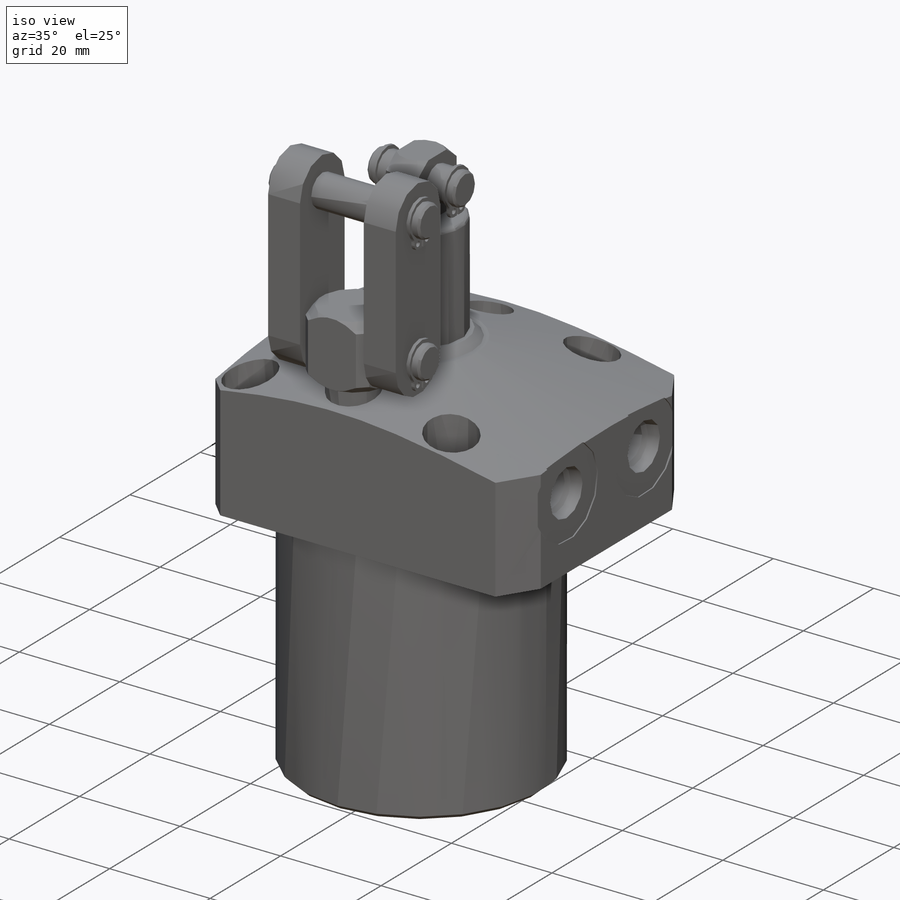
[diagram: iso view]
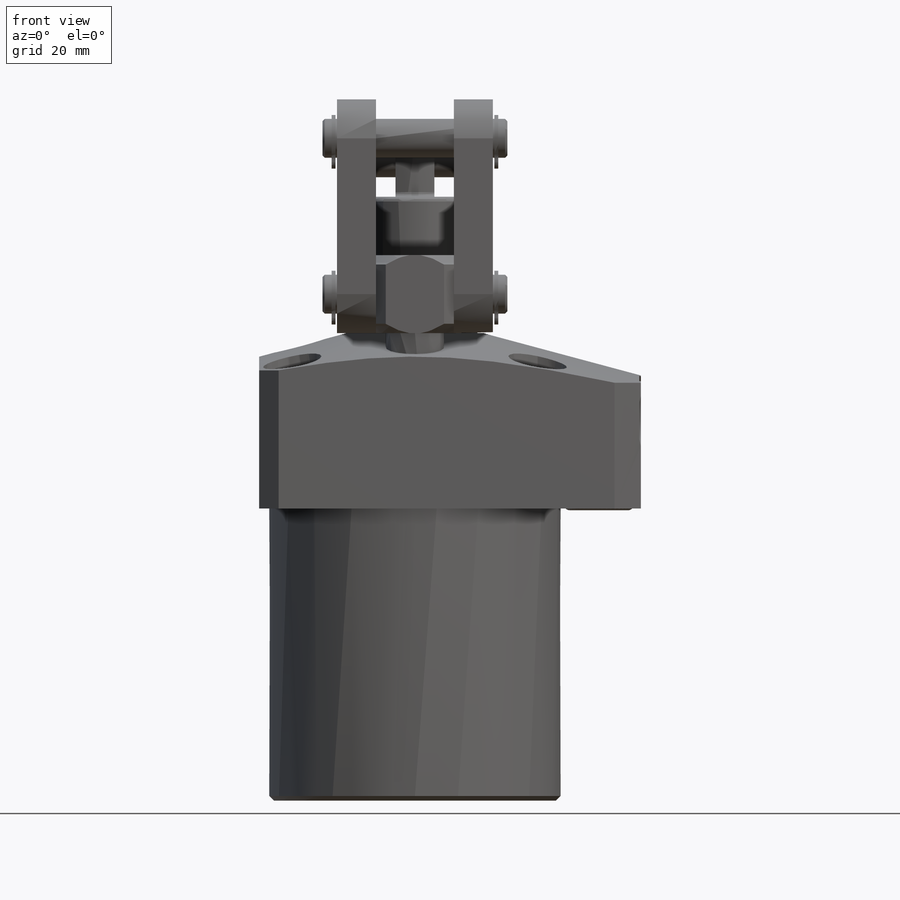
[diagram: front view]
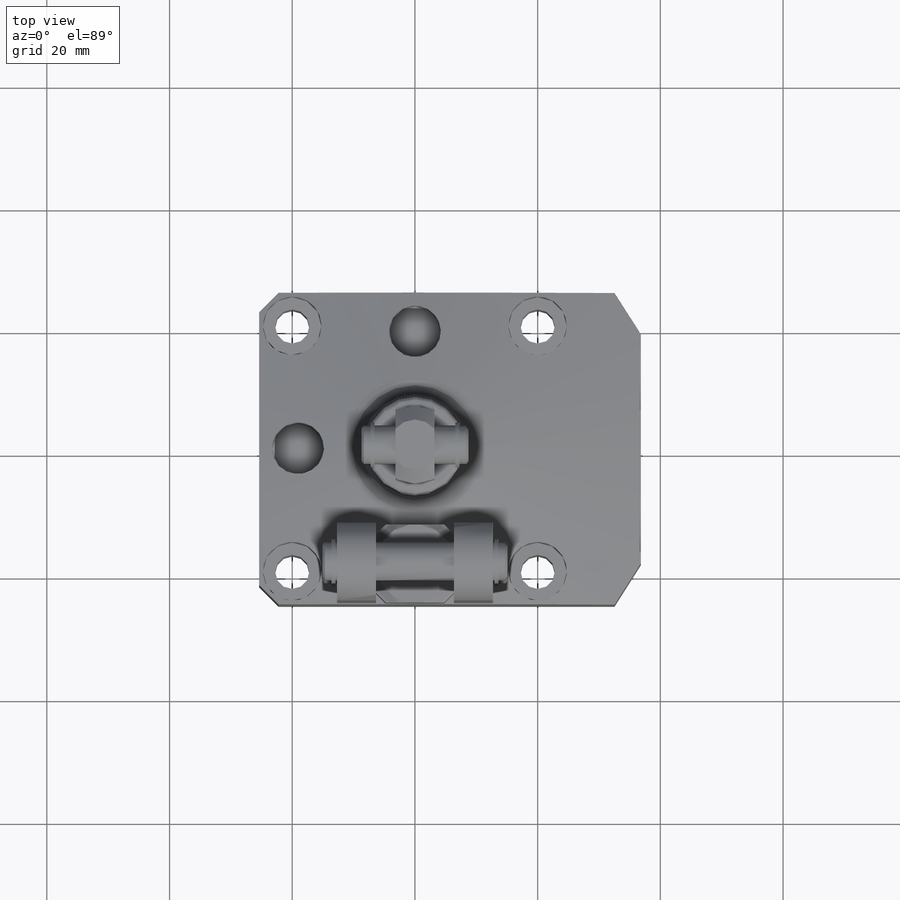
[diagram: top view]
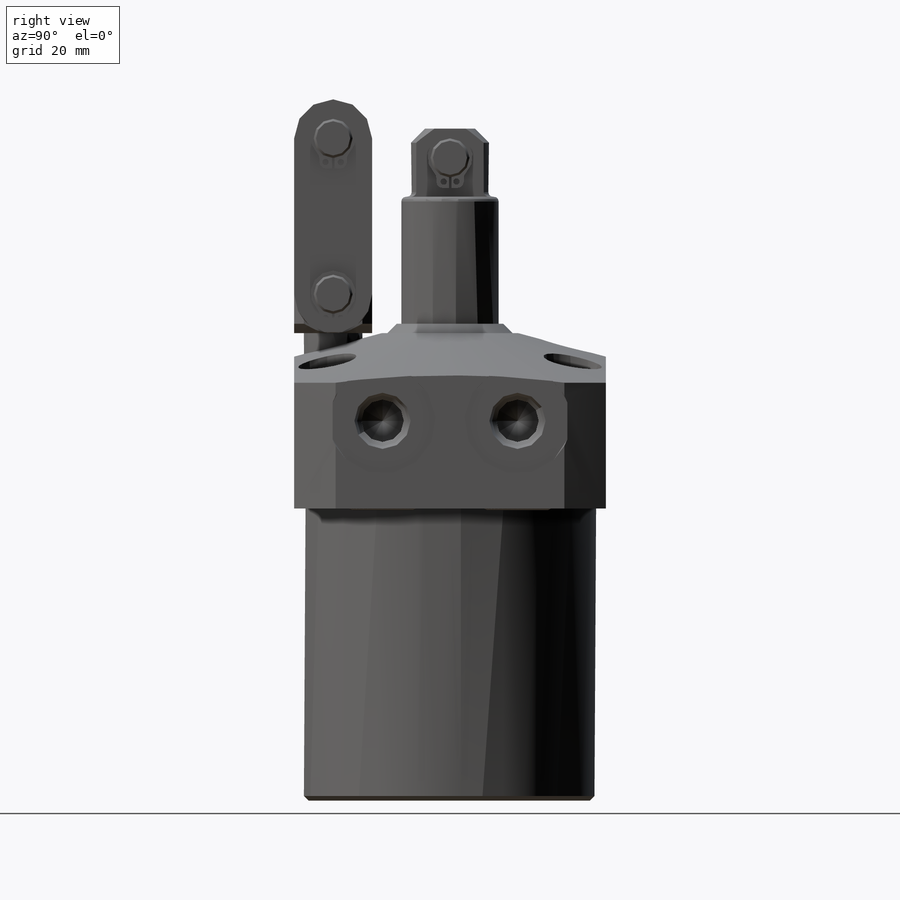
[diagram: right view]
SOLIDWORKS PART (.sldprt)
format: sldprt  version: not decoded by parser v0  size: 710,656 bytes
history: native  units: mm
features: sketch x18, mirror x6, revolve x5, extrude x5, cut_extrude x4, chamfer x4, plane x3, cut_revolve x2, material x1, hole x1, fillet x1, pattern_linear x1 (+14 scaffold rows collapsed)
feature tree (65):
  scaffold x14  (default folders/planes/origin — collapsed)
  material  "Alloy Steel"
  sketch  "Sketch28"  dims[c1.D1=76.962mm c1.D2=47.625mm c1.D3=47.625mm c1.D4=3.048mm c1.D5=82.55mm c1.D6=~23.889137mm c2.D6=15.0deg c2.D7=22.225mm c2.D8=28.575mm]
  revolve  "Revolve7"  Angle=360deg
  sketch  "Sketch3"  dims[c1.D1=50.8mm c1.D2=36.83mm c1.D3=11.7348mm c2.D3=120.0deg c2.D4=30.1498mm c2.D5=25.4mm]
  cut_extrude  "Cut-Extrude9"  [1 undecoded]
  chamfer  "Chamfer8"  Distance=3.175mm Angle=45deg
  chamfer  "Chamfer5"  Distance=0.762mm Angle=45deg
  hole  "Hole1"  Diameter=5.5626mm Depth=28.575mm
  sketch  "Sketch32"  dims[c1.D1=50.8mm c1.D2=50.8mm c1.D3=50.8mm c1.D4=25.4mm c2.D1=19.05mm c2.D2=20.0025mm c3.D1=40.005mm c3.D2=40.005mm]
  sketch  "Sketch31"  dims[Diameter=5.5626mm Depth=28.575mm C-Bore Diameter=9.525mm C-Bore Depth=11.0998mm]
  sketch  "Sketch34"  dims[D1=8.4328mm D2=19.05mm]
  cut_extrude  "Cut-Extrude10"  Depth=12.7mm
  plane  "Plane23"  Offset=14.2748mm
  sketch  "S2D0007"  dims[c1.D1=0.254mm c1.D2=6.35mm c1.D3=6.9088mm c1.D4=~0.963415mm c2.D4=45.0deg c2.D5=2.0828mm c3.D5=12.0deg c3.D6=2.0701mm c3.D7=0.254mm c3.D8=17.3228mm c3.D1=9.1567mm c3.D9=10.9982mm c3.D2=3.4544mm c4.D2=59.0deg c4.D10=12.192mm]
  cut_revolve  "Cut-Revolve2"  Angle=360deg
  plane  "Plane24"  Offset=10.9982mm
  sketch  "Sketch6"  dims[c1.D3=1.778mm c1.D8=3.7211mm c1.D1=1.4478mm c1.D2=11.0998mm c2.D3=1.2446mm c3.D3=59.0deg c3.D4=23.876mm c3.D5=2.4892mm c3.D6=1.1303mm c4.D6=59.0deg c4.D7=1.016mm c4.D8=6.5024mm c4.D9=11.3411mm c4.D10=4.7498mm c4.D2=29.9974mm c4.D3=~2.144955mm c5.D3=59.0deg c5.D6=~1.353155mm c6.D6=59.0deg c6.D4=9.5631mm c6.D5=0.8636mm c6.D1=1.4478mm c7.D6=3.175mm c7.D7=0.5588mm c7.D10=2.286mm c7.D11=4.6228mm]
  cut_revolve  "Cut-Revolve3"  Angle=360deg
  mirror  "Mirror6"
  sketch  "Sketch33"  dims[D3=1.778mm D1=9.5631mm D2=0.8636mm]
  revolve  "Revolve9"  Angle=360deg
  mirror  "Mirror7"
  sketch  "Sketch12"  dims[D1=4.7498mm D2=1.524mm D3=17.399mm D4=20.447mm]
  revolve  "Revolve2"  Angle=360deg
  plane  "Plane25"
  sketch  "Sketch13"  dims[c1.D1=4.7498mm c1.D2=57.15mm c1.D3=12.7mm c1.D4=0.762mm c2.D4=45.0deg c2.D5=2.286mm c2.D6=15.8623mm c2.D7=11.0998mm]
  revolve  "Revolve3"  Angle=360deg
  sketch  "Sketch14"  dims[c1.D1=6.35mm c1.D2=~8.01621mm c2.D2=90.0deg]
  cut_extrude  "Cut-Extrude7"  [1 undecoded]
  fillet  "Fillet4"  Radius=0.762mm
  sketch  "Sketch29"  dims[D1=6.3373mm D2=4.7498mm]
  extrude  "Extrude11"  Depth=17.4498mm
  sketch  "Sketch16"  dims[c1.D1=3.683mm c1.D4=4.7498mm c1.D6=0.635mm c1.D7=2.2225mm c1.D8=2.921mm c1.D10=1.0414mm c1.D11=1.0414mm c2.D6=1.0414mm c2.D4=1.0414mm c3.D6=1.0414mm c3.D2=2.032mm c3.D3=0.127mm c3.D4=~1.19888mm c3.D5=1.0414mm c3.D7=2.032mm c3.D9=~0.41656mm c4.D4=1.0414mm c4.D5=1.0414mm]
  extrude  "Extrude2"  Depth=0.635mm
  chamfer  "Chamfer6"  Distance=0.381mm Angle=45deg
  mirror  "Mirror2"
  sketch  "Sketch35"  dims[D1=12.7mm D2=9.525mm D3=15.875mm D4=25.4mm D5=12.7mm D6=19.05mm D9=1.524mm D10=1.524mm]
  revolve  "Revolve10"  Angle=360deg
  sketch  "Sketch36"  dims[c1.D1=12.7mm c1.D2=12.7mm c2.D1=12.7mm c2.D2=12.7mm]
  cut_extrude  "Cut-Extrude11"  [1 undecoded]
  sketch  "Sketch30"  dims[D3=6.3373mm D1=34.925mm D2=19.05mm]
  extrude  "Extrude12"  Depth=30.1498mm
  sketch  "Sketch19"  dims[c1.D1=3.683mm c1.D3=6.35mm c1.D4=1.0414mm c1.D5=1.0414mm c1.D6=1.0414mm c1.D9=2.921mm c1.D2=2.032mm c2.D3=0.127mm c2.D7=~0.41656mm c2.D8=2.032mm c2.D10=1.0414mm c2.D11=1.0414mm]
  extrude  "Extrude4"  Depth=0.635mm
  sketch  "Sketch37"  dims[D1=12.7mm D2=25.4mm D3=~19.312771mm]
  extrude  "Extrude13"  Depth=6.35mm
  mirror  "Mirror3"
  chamfer  "Chamfer7"  Distance=0.381mm Angle=45deg
  pattern_linear  "LPattern2"  Count1=2 Count2=1 Spacing1=25.4mm Spacing2=40.005mm
  mirror  "Mirror8"
  mirror  "Mirror5"
decode coverage: 38 of 47 modeling features carry decoded parameters
note: ~ marks probable driven/reference dimensions
note: 3 parameter values undecoded
summary: no parameter record found for 3 features
note: suppression state not decoded; provenance and decode notes live in map.json
